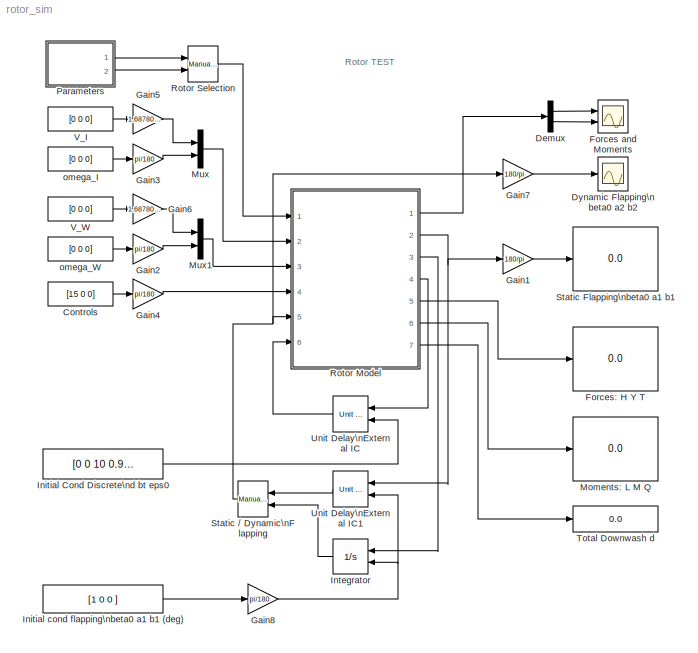
MODEL rotor_sim
KIND model
CONFIG PostLoadFcn = bus_RotorParameters;\nbus_FuselageParameters;\nbus_FinParameters;\nbus_GeometryParameters;\nbus_Environment;\n
BLOCK [Constant] Controls
  SID = 1
  Value = [15 0 0]
BLOCK [Demux] Demux
  DisplayOption = bar
  Outputs = [3 3]
  Ports = [1, 2]
  SID = 2
BLOCK [Scope] Dynamic Flapping\nbeta0 a2 b2
  DataFormat = StructureWithTime
  Floating = off
  LimitDataPoints = off
  NumInputPorts = 1
  Ports = [1]
  SID = 3
  SampleTime = 0
  YMax = 10
  YMin = -10
BLOCK [Scope] Forces and Moments
  DataFormat = StructureWithTime
  Floating = off
  LimitDataPoints = off
  NumInputPorts = 2
  Ports = [2]
  SID = 4
  SampleTime = 0
  SaveName = ScopeData1
  YMax = 2000~10000
  YMin = -6000~-10000
BLOCK [Display] Forces: H Y T
  Decimation = 1
  Lockdown = off
  Ports = [1]
  SID = 5
BLOCK [Gain] Gain1
  Gain = 180/pi
  OutDataTypeStr = Inherit: Inherit via internal rule
  ParamDataTypeStr = Inherit: Inherit via internal rule
  SID = 6
  SaturateOnIntegerOverflow = off
BLOCK [Gain] Gain2
  Gain = pi/180
  OutDataTypeStr = Inherit: Inherit via internal rule
  ParamDataTypeStr = Inherit: Inherit via internal rule
  SID = 7
  SaturateOnIntegerOverflow = off
BLOCK [Gain] Gain3
  Gain = pi/180
  OutDataTypeStr = Inherit: Inherit via internal rule
  ParamDataTypeStr = Inherit: Inherit via internal rule
  SID = 8
  SaturateOnIntegerOverflow = off
BLOCK [Gain] Gain4
  Gain = pi/180
  OutDataTypeStr = Inherit: Inherit via internal rule
  ParamDataTypeStr = Inherit: Inherit via internal rule
  SID = 9
  SaturateOnIntegerOverflow = off
BLOCK [Gain] Gain5
  Gain = 1.68780986
  OutDataTypeStr = Inherit: Inherit via internal rule
  ParamDataTypeStr = Inherit: Inherit via internal rule
  SID = 10
  SaturateOnIntegerOverflow = off
BLOCK [Gain] Gain6
  Gain = 1.68780986
  OutDataTypeStr = Inherit: Inherit via internal rule
  ParamDataTypeStr = Inherit: Inherit via internal rule
  SID = 11
  SaturateOnIntegerOverflow = off
BLOCK [Gain] Gain7
  Gain = 180/pi
  OutDataTypeStr = Inherit: Inherit via internal rule
  ParamDataTypeStr = Inherit: Inherit via internal rule
  SID = 12
  SaturateOnIntegerOverflow = off
BLOCK [Gain] Gain8
  Gain = pi/180
  OutDataTypeStr = Inherit: Inherit via internal rule
  ParamDataTypeStr = Inherit: Inherit via internal rule
  SID = 13
  SaturateOnIntegerOverflow = off
BLOCK [Constant] Initial Cond Discrete\nd  bt  eps0
  SID = 14
  Value = [0 0 10 0.97 0.0018]
BLOCK [Constant] Initial cond flapping\nbeta0 a1 b1 (deg)
  SID = 15
  Value = [1 0 0 ]
BLOCK [Integrator] Integrator
  InitialConditionSource = external
  Ports = [2, 1]
  SID = 16
BLOCK [Display] Moments: L M Q
  Decimation = 1
  Lockdown = off
  Ports = [1]
  SID = 17
BLOCK [Mux] Mux
  DisplayOption = bar
  Inputs = 2
  Ports = [2, 1]
  SID = 18
BLOCK [Mux] Mux1
  DisplayOption = bar
  Inputs = 2
  Ports = [2, 1]
  SID = 19
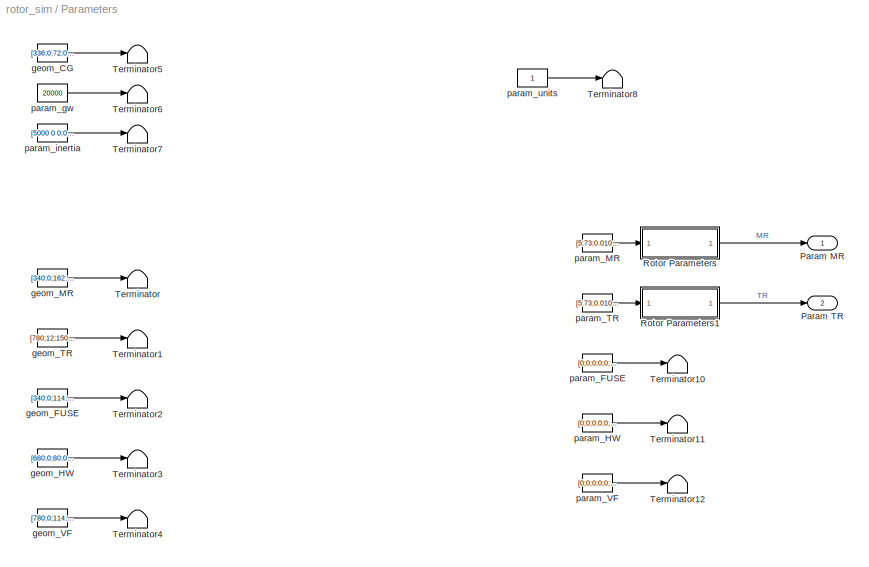
BLOCK [SubSystem] Parameters
  FunctionWithSeparateData = off
  MaskHideContents = off
  MinAlgLoopOccurrences = off
  Opaque = off
  OpenFcn = gui_HelicopterParameters( 'Block', [get_param(gcb, 'Parent') '/' get_param(gcb, 'Name')]);
  Ports = [0, 2]
  PropExecContextOutsideSubsystem = off
  RTWSystemCode = Auto
  RequestExecContextInheritance = off
  SID = 20
BLOCK [Outport] Parameters/Param MR
  IconDisplay = Port number
  SID = 71
BLOCK [Outport] Parameters/Param TR
  IconDisplay = Port number
  Port = 2
  SID = 72
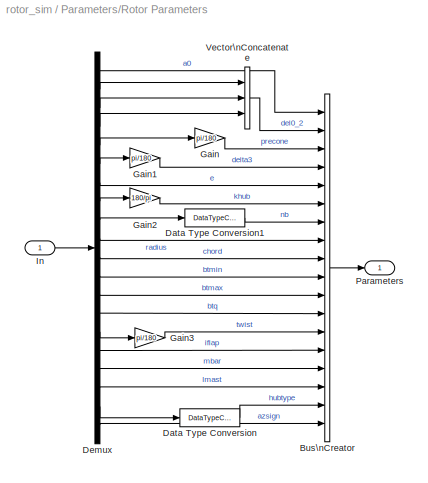
BLOCK [SubSystem] Parameters/Rotor Parameters
  FunctionWithSeparateData = off
  MaskHideContents = off
  MinAlgLoopOccurrences = off
  Opaque = off
  Ports = [1, 1]
  PropExecContextOutsideSubsystem = off
  RTWSystemCode = Auto
  RequestExecContextInheritance = off
  SID = 21
BLOCK [BusCreator] Parameters/Rotor Parameters/Bus\nCreator
  DisplayOption = bar
  Inputs = 18
  NonVirtualBus = on
  OutDataTypeStr = Bus: RotorParameters
  Ports = [18, 1]
  SID = 23
BLOCK [DataTypeConversion] Parameters/Rotor Parameters/Data Type Conversion
  OutDataTypeStr = int32
  RndMeth = Nearest
  SID = 24
  SaturateOnIntegerOverflow = off
BLOCK [DataTypeConversion] Parameters/Rotor Parameters/Data Type Conversion1
  OutDataTypeStr = uint32
  RndMeth = Nearest
  SID = 25
  SaturateOnIntegerOverflow = off
BLOCK [Demux] Parameters/Rotor Parameters/Demux
  DisplayOption = bar
  Outputs = 20
  Ports = [1, 20]
  SID = 26
BLOCK [Gain] Parameters/Rotor Parameters/Gain
  Gain = pi/180
  OutDataTypeStr = Inherit: Inherit via internal rule
  ParamDataTypeStr = Inherit: Inherit via internal rule
  SID = 27
  SaturateOnIntegerOverflow = off
BLOCK [Gain] Parameters/Rotor Parameters/Gain1
  Gain = pi/180
  OutDataTypeStr = Inherit: Inherit via internal rule
  ParamDataTypeStr = Inherit: Inherit via internal rule
  SID = 28
  SaturateOnIntegerOverflow = off
BLOCK [Gain] Parameters/Rotor Parameters/Gain2
  Gain = 180/pi
  OutDataTypeStr = Inherit: Inherit via internal rule
  ParamDataTypeStr = Inherit: Inherit via internal rule
  SID = 29
  SaturateOnIntegerOverflow = off
BLOCK [Gain] Parameters/Rotor Parameters/Gain3
  Gain = pi/180
  OutDataTypeStr = Inherit: Inherit via internal rule
  ParamDataTypeStr = Inherit: Inherit via internal rule
  SID = 30
  SaturateOnIntegerOverflow = off
BLOCK [Inport] Parameters/Rotor Parameters/In
  IconDisplay = Port number
  SID = 22
BLOCK [Outport] Parameters/Rotor Parameters/Parameters
  IconDisplay = Port number
  OutDataTypeStr = Bus: RotorParameters
  SID = 32
BLOCK [Concatenate] Parameters/Rotor Parameters/Vector\nConcatenate
  Mode = Vector
  NumInputs = 3
  Ports = [3, 1]
  SID = 31
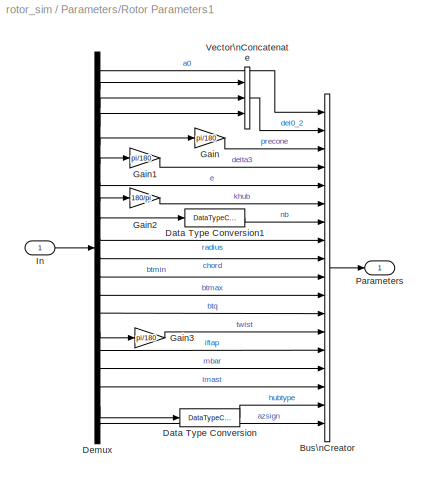
BLOCK [SubSystem] Parameters/Rotor Parameters1
  FunctionWithSeparateData = off
  MaskHideContents = off
  MinAlgLoopOccurrences = off
  Opaque = off
  Ports = [1, 1]
  PropExecContextOutsideSubsystem = off
  RTWSystemCode = Auto
  RequestExecContextInheritance = off
  SID = 33
BLOCK [BusCreator] Parameters/Rotor Parameters1/Bus\nCreator
  DisplayOption = bar
  Inputs = 18
  NonVirtualBus = on
  OutDataTypeStr = Bus: RotorParameters
  Ports = [18, 1]
  SID = 35
BLOCK [DataTypeConversion] Parameters/Rotor Parameters1/Data Type Conversion
  OutDataTypeStr = int32
  RndMeth = Nearest
  SID = 36
  SaturateOnIntegerOverflow = off
BLOCK [DataTypeConversion] Parameters/Rotor Parameters1/Data Type Conversion1
  OutDataTypeStr = uint32
  RndMeth = Nearest
  SID = 37
  SaturateOnIntegerOverflow = off
BLOCK [Demux] Parameters/Rotor Parameters1/Demux
  DisplayOption = bar
  Outputs = 20
  Ports = [1, 20]
  SID = 38
BLOCK [Gain] Parameters/Rotor Parameters1/Gain
  Gain = pi/180
  OutDataTypeStr = Inherit: Inherit via internal rule
  ParamDataTypeStr = Inherit: Inherit via internal rule
  SID = 39
  SaturateOnIntegerOverflow = off
BLOCK [Gain] Parameters/Rotor Parameters1/Gain1
  Gain = pi/180
  OutDataTypeStr = Inherit: Inherit via internal rule
  ParamDataTypeStr = Inherit: Inherit via internal rule
  SID = 40
  SaturateOnIntegerOverflow = off
BLOCK [Gain] Parameters/Rotor Parameters1/Gain2
  Gain = 180/pi
  OutDataTypeStr = Inherit: Inherit via internal rule
  ParamDataTypeStr = Inherit: Inherit via internal rule
  SID = 41
  SaturateOnIntegerOverflow = off
BLOCK [Gain] Parameters/Rotor Parameters1/Gain3
  Gain = pi/180
  OutDataTypeStr = Inherit: Inherit via internal rule
  ParamDataTypeStr = Inherit: Inherit via internal rule
  SID = 42
  SaturateOnIntegerOverflow = off
BLOCK [Inport] Parameters/Rotor Parameters1/In
  IconDisplay = Port number
  SID = 34
BLOCK [Outport] Parameters/Rotor Parameters1/Parameters
  IconDisplay = Port number
  OutDataTypeStr = Bus: RotorParameters
  SID = 44
BLOCK [Concatenate] Parameters/Rotor Parameters1/Vector\nConcatenate
  Mode = Vector
  NumInputs = 3
  Ports = [3, 1]
  SID = 43
BLOCK [Terminator] Parameters/Terminator
  SID = 45
BLOCK [Terminator] Parameters/Terminator1
  SID = 46
BLOCK [Terminator] Parameters/Terminator10
  SID = 47
BLOCK [Terminator] Parameters/Terminator11
  SID = 48
BLOCK [Terminator] Parameters/Terminator12
  SID = 49
BLOCK [Terminator] Parameters/Terminator2
  SID = 50
BLOCK [Terminator] Parameters/Terminator3
  SID = 51
BLOCK [Terminator] Parameters/Terminator4
  SID = 52
BLOCK [Terminator] Parameters/Terminator5
  SID = 53
BLOCK [Terminator] Parameters/Terminator6
  SID = 54
BLOCK [Terminator] Parameters/Terminator7
  SID = 55
BLOCK [Terminator] Parameters/Terminator8
  SID = 56
BLOCK [Constant] Parameters/geom_CG
  SID = 57
  Value = [336;0;72;0;0;0]
BLOCK [Constant] Parameters/geom_FUSE
  SID = 58
  Value = [340;0;114;0;0;0]
BLOCK [Constant] Parameters/geom_HW
  SID = 59
  Value = [680;0;80;0;0;0]
BLOCK [Constant] Parameters/geom_MR
  SID = 60
  Value = [340;0;162;0;0;0]
BLOCK [Constant] Parameters/geom_TR
  SID = 61
  Value = [780;12;150;90;0;0]
BLOCK [Constant] Parameters/geom_VF
  SID = 62
  Value = [780;0;114;-90;0;0]
BLOCK [Constant] Parameters/param_FUSE
  SID = 63
  Value = [0;0;0;0;0;0;0;0;0;0;0;0;0;0;0;0;0]
BLOCK [Constant] Parameters/param_HW
  SID = 64
  Value = [0;0;0;0;0;0;0;0;0;0;0;0;0;0]
BLOCK [Constant] Parameters/param_MR
  SID = 65
  Value = [5.73;0.0105;0;0.01325;0;0;0;0;2;22;2;0.97;0.97;1;-11;1403;0;0;1;-1]
BLOCK [Constant] Parameters/param_TR
  SID = 66
  Value = [5.73;0.0105;0;0.01325;0;-45;0;0;4;6.5;1.25;0.97;0.97;1;0;0;0.26;0;1;-1]
BLOCK [Constant] Parameters/param_VF
  SID = 67
  Value = [0;0;0;0;0;0;0;0;0;0;0;0;0;0]
BLOCK [Constant] Parameters/param_gw
  SID = 68
  Value = 20000
BLOCK [Constant] Parameters/param_inertia
  SID = 69
  Value = [5000 0 0;0 35000 0;0 0 35000]
BLOCK [Constant] Parameters/param_units
  SID = 70
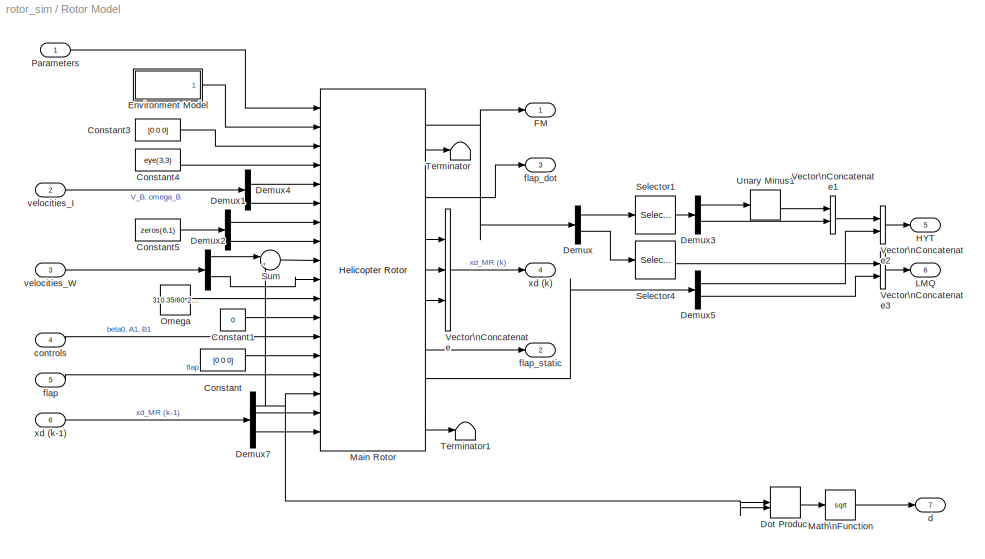
BLOCK [SubSystem] Rotor Model
  FunctionWithSeparateData = off
  MaskHideContents = off
  MinAlgLoopOccurrences = off
  Opaque = off
  Ports = [6, 7]
  PropExecContextOutsideSubsystem = off
  RTWSystemCode = Auto
  RequestExecContextInheritance = off
  SID = 73
BLOCK [Constant] Rotor Model/Constant
  SID = 80
  Value = [0 0 0]
BLOCK [Constant] Rotor Model/Constant1
  SID = 81
  Value = 0
BLOCK [Constant] Rotor Model/Constant3
  SID = 82
  Value = [0 0 0]
BLOCK [Constant] Rotor Model/Constant4
  SID = 83
  Value = eye(3,3)
BLOCK [Constant] Rotor Model/Constant5
  SID = 84
  Value = zeros(6,1)
BLOCK [Demux] Rotor Model/Demux
  DisplayOption = bar
  Outputs = 2
  Ports = [1, 2]
  SID = 85
BLOCK [Demux] Rotor Model/Demux1
  DisplayOption = bar
  Outputs = 2
  Ports = [1, 2]
  SID = 86
BLOCK [Demux] Rotor Model/Demux2
  DisplayOption = bar
  Outputs = 2
  Ports = [1, 2]
  SID = 87
BLOCK [Demux] Rotor Model/Demux3
  DisplayOption = bar
  Outputs = 2
  Ports = [1, 2]
  SID = 88
BLOCK [Demux] Rotor Model/Demux4
  DisplayOption = bar
  Outputs = 2
  Ports = [1, 2]
  SID = 89
BLOCK [Demux] Rotor Model/Demux5
  DisplayOption = bar
  Outputs = 2
  Ports = [1, 2]
  SID = 90
BLOCK [Demux] Rotor Model/Demux7
  DisplayOption = bar
  Outputs = [3 1 1]
  Ports = [1, 3]
  SID = 91
BLOCK [DotProduct] Rotor Model/Dot Product
  OutDataTypeStr = Inherit: Inherit via internal rule
  SID = 92
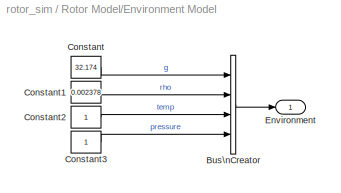
BLOCK [SubSystem] Rotor Model/Environment Model
  FunctionWithSeparateData = off
  MaskHideContents = off
  MinAlgLoopOccurrences = off
  Opaque = off
  Ports = [0, 1]
  PropExecContextOutsideSubsystem = off
  RTWSystemCode = Auto
  RequestExecContextInheritance = off
  SID = 93
BLOCK [BusCreator] Rotor Model/Environment Model/Bus\nCreator
  DisplayOption = bar
  NonVirtualBus = on
  OutDataTypeStr = Bus: Environment
  Ports = [4, 1]
  SID = 94
BLOCK [Constant] Rotor Model/Environment Model/Constant
  SID = 95
  Value = 32.174
BLOCK [Constant] Rotor Model/Environment Model/Constant1
  SID = 96
  Value = 0.002378
BLOCK [Constant] Rotor Model/Environment Model/Constant2
  SID = 97
BLOCK [Constant] Rotor Model/Environment Model/Constant3
  SID = 98
BLOCK [Outport] Rotor Model/Environment Model/Environment
  IconDisplay = Port number
  OutDataTypeStr = Bus: Environment
  SID = 99
BLOCK [Outport] Rotor Model/FM
  IconDisplay = Port number
  SID = 113
BLOCK [Outport] Rotor Model/HYT
  IconDisplay = Port number
  Port = 5
  SID = 117
BLOCK [Outport] Rotor Model/LMQ
  IconDisplay = Port number
  Port = 6
  SID = 118
BLOCK [Reference] Rotor Model/Main Rotor  REF=UAVdesign_net/Subsystem\nModels/Helicopter Rotor
  FunctionWithSeparateData = off
  GeneratePreprocessorConditionals = off
  Ports = [18, 9]
  RTWMemSecDataConstants = Inherit from model
  RTWMemSecDataInternal = Inherit from model
  RTWMemSecDataParameters = Inherit from model
  RTWMemSecFuncExecute = Inherit from model
  RTWMemSecFuncInitTerm = Inherit from model
  SID = 100
  ShowPortLabels = FromPortIcon
  SourceBlock = UAVdesign_net/Subsystem\nModels/Helicopter Rotor
  SourceType = HelicopterRotorModel
  SystemSampleTime = -1
BLOCK [Math] Rotor Model/Math\nFunction
  Operator = sqrt
  Ports = [1, 1]
  SID = 101
BLOCK [Constant] Rotor Model/Omega
  SID = 102
  Value = 310.35/60*2*pi
BLOCK [Inport] Rotor Model/Parameters
  IconDisplay = Port number
  OutDataTypeStr = Bus: RotorParameters
  SID = 74
BLOCK [Selector] Rotor Model/Selector1
  IndexOptions = Index vector (dialog)
  Indices = [1 2]
  InputPortWidth = 3
  OutputSizes = 1
  Ports = [1, 1]
  SID = 103
BLOCK [Selector] Rotor Model/Selector4
  IndexOptions = Index vector (dialog)
  Indices = [1 2]
  InputPortWidth = 3
  OutputSizes = 1
  Ports = [1, 1]
  SID = 104
BLOCK [Sum] Rotor Model/Sum
  IconShape = round
  InputSameDT = off
  Inputs = |++
  OutDataTypeStr = Inherit: Inherit via internal rule
  Ports = [2, 1]
  SID = 105
  SaturateOnIntegerOverflow = off
BLOCK [Terminator] Rotor Model/Terminator
  SID = 106
BLOCK [Terminator] Rotor Model/Terminator1
  SID = 107
BLOCK [UnaryMinus] Rotor Model/Unary Minus1
  SID = 108
BLOCK [Concatenate] Rotor Model/Vector\nConcatenate
  Mode = Vector
  NumInputs = 3
  Ports = [3, 1]
  SID = 109
BLOCK [Concatenate] Rotor Model/Vector\nConcatenate1
  Mode = Vector
  Ports = [2, 1]
  SID = 110
BLOCK [Concatenate] Rotor Model/Vector\nConcatenate2
  Mode = Vector
  Ports = [2, 1]
  SID = 111
BLOCK [Concatenate] Rotor Model/Vector\nConcatenate3
  Mode = Vector
  Ports = [2, 1]
  SID = 112
BLOCK [Inport] Rotor Model/controls
  IconDisplay = Port number
  Port = 4
  SID = 77
BLOCK [Outport] Rotor Model/d
  IconDisplay = Port number
  Port = 7
  SID = 119
BLOCK [Inport] Rotor Model/flap
  IconDisplay = Port number
  Port = 5
  SID = 78
BLOCK [Outport] Rotor Model/flap_dot
  IconDisplay = Port number
  Port = 3
  SID = 115
BLOCK [Outport] Rotor Model/flap_static
  IconDisplay = Port number
  Port = 2
  SID = 114
BLOCK [Inport] Rotor Model/velocities_I
  IconDisplay = Port number
  Port = 2
  SID = 75
BLOCK [Inport] Rotor Model/velocities_W
  IconDisplay = Port number
  Port = 3
  SID = 76
BLOCK [Outport] Rotor Model/xd (k)
  IconDisplay = Port number
  Port = 4
  SID = 116
BLOCK [Inport] Rotor Model/xd (k-1)
  IconDisplay = Port number
  Port = 6
  SID = 79
BLOCK [Reference] Rotor Selection  REF=simulink/Signal\nRouting/Manual Switch
  FunctionWithSeparateData = off
  GeneratePreprocessorConditionals = off
  Ports = [2, 1]
  RTWMemSecDataConstants = Inherit from model
  RTWMemSecDataInternal = Inherit from model
  RTWMemSecDataParameters = Inherit from model
  RTWMemSecFuncExecute = Inherit from model
  RTWMemSecFuncInitTerm = Inherit from model
  SID = 120
  ShowPortLabels = FromPortIcon
  SourceBlock = simulink/Signal\nRouting/Manual Switch
  SourceType = Manual Switch
  SystemSampleTime = -1
  action = 0
  sw = 1
  varsize = off
BLOCK [Reference] Static // Dynamic\nFlapping  REF=simulink/Signal\nRouting/Manual Switch
  FunctionWithSeparateData = off
  GeneratePreprocessorConditionals = off
  Ports = [2, 1]
  RTWMemSecDataConstants = Inherit from model
  RTWMemSecDataInternal = Inherit from model
  RTWMemSecDataParameters = Inherit from model
  RTWMemSecFuncExecute = Inherit from model
  RTWMemSecFuncInitTerm = Inherit from model
  SID = 121
  ShowPortLabels = FromPortIcon
  SourceBlock = simulink/Signal\nRouting/Manual Switch
  SourceType = Manual Switch
  SystemSampleTime = -1
  action = 0
  sw = 1
  varsize = off
BLOCK [Display] Static Flapping\nbeta0 a1 b1
  Decimation = 1
  Lockdown = off
  Ports = [1]
  SID = 122
BLOCK [Display] Total Downwash d
  Decimation = 1
  Lockdown = off
  Ports = [1]
  SID = 123
BLOCK [Reference] Unit Delay\nExternal IC  REF=simulink/Additional Math\n& Discrete/Additional\nDiscrete/Unit Delay\nExternal IC
  FunctionWithSeparateData = off
  GeneratePreprocessorConditionals = off
  Ports = [2, 1]
  RTWMemSecDataConstants = Inherit from model
  RTWMemSecDataInternal = Inherit from model
  RTWMemSecDataParameters = Inherit from model
  RTWMemSecFuncExecute = Inherit from model
  RTWMemSecFuncInitTerm = Inherit from model
  SID = 124
  ShowPortLabels = FromPortIcon
  SourceBlock = simulink/Additional Math\n& Discrete/Additional\nDiscrete/Unit Delay\nExternal IC
  SourceType = Unit Delay External Initial Condition
  SystemSampleTime = -1
  tsamp = 1/25
BLOCK [Reference] Unit Delay\nExternal IC1  REF=simulink/Additional Math\n& Discrete/Additional\nDiscrete/Unit Delay\nExternal IC
  FunctionWithSeparateData = off
  GeneratePreprocessorConditionals = off
  Ports = [2, 1]
  RTWMemSecDataConstants = Inherit from model
  RTWMemSecDataInternal = Inherit from model
  RTWMemSecDataParameters = Inherit from model
  RTWMemSecFuncExecute = Inherit from model
  RTWMemSecFuncInitTerm = Inherit from model
  SID = 125
  ShowPortLabels = FromPortIcon
  SourceBlock = simulink/Additional Math\n& Discrete/Additional\nDiscrete/Unit Delay\nExternal IC
  SourceType = Unit Delay External Initial Condition
  SystemSampleTime = -1
  tsamp = 1/25
BLOCK [Constant] V_I
  SID = 126
  Value = [0 0 0]
BLOCK [Constant] V_W
  SID = 127
  Value = [0 0 0]
BLOCK [Constant] omega_I
  SID = 128
  Value = [0 0 0]
BLOCK [Constant] omega_W
  SID = 129
  Value = [0 0 0]
ANNOTATION (root): Rotor TEST
LINE Controls:1 -> Gain4:1
LINE Demux:1 -> Forces and Moments:1
LINE Demux:2 -> Forces and Moments:2
LINE Gain1:1 -> Static Flapping\nbeta0 a1 b1:1
LINE Gain2:1 -> Mux1:2
LINE Gain3:1 -> Mux:2
LINE Gain4:1 -> Rotor Model:4
LINE Gain5:1 -> Mux:1
LINE Gain6:1 -> Mux1:1
LINE Gain7:1 -> Dynamic Flapping\nbeta0 a2 b2:1
NET Gain8:1 -> Integrator:2, Unit Delay\nExternal IC1:2
LINE Initial Cond Discrete\nd  bt  eps0:1 -> Unit Delay\nExternal IC:2
LINE Initial cond flapping\nbeta0 a1 b1 (deg):1 -> Gain8:1
LINE Integrator:1 -> Static // Dynamic\nFlapping:2
LINE Mux1:1 -> Rotor Model:3
LINE Mux:1 -> Rotor Model:2
LINE Parameters/Rotor Parameters/Bus\nCreator:1 -> Parameters/Rotor Parameters/Parameters:1
LINE Parameters/Rotor Parameters/Data Type Conversion1:1 -> Parameters/Rotor Parameters/Bus\nCreator:7
LINE Parameters/Rotor Parameters/Data Type Conversion:1 -> Parameters/Rotor Parameters/Bus\nCreator:17
LINE Parameters/Rotor Parameters/Demux:1 -> Parameters/Rotor Parameters/Bus\nCreator:1
LINE Parameters/Rotor Parameters/Demux:10 -> Parameters/Rotor Parameters/Bus\nCreator:8
LINE Parameters/Rotor Parameters/Demux:11 -> Parameters/Rotor Parameters/Bus\nCreator:9
LINE Parameters/Rotor Parameters/Demux:12 -> Parameters/Rotor Parameters/Bus\nCreator:10
LINE Parameters/Rotor Parameters/Demux:13 -> Parameters/Rotor Parameters/Bus\nCreator:11
LINE Parameters/Rotor Parameters/Demux:14 -> Parameters/Rotor Parameters/Bus\nCreator:12
LINE Parameters/Rotor Parameters/Demux:15 -> Parameters/Rotor Parameters/Gain3:1
LINE Parameters/Rotor Parameters/Demux:16 -> Parameters/Rotor Parameters/Bus\nCreator:14
LINE Parameters/Rotor Parameters/Demux:17 -> Parameters/Rotor Parameters/Bus\nCreator:15
LINE Parameters/Rotor Parameters/Demux:18 -> Parameters/Rotor Parameters/Bus\nCreator:16
LINE Parameters/Rotor Parameters/Demux:19 -> Parameters/Rotor Parameters/Data Type Conversion:1
LINE Parameters/Rotor Parameters/Demux:2 -> Parameters/Rotor Parameters/Vector\nConcatenate:1
LINE Parameters/Rotor Parameters/Demux:20 -> Parameters/Rotor Parameters/Bus\nCreator:18
LINE Parameters/Rotor Parameters/Demux:3 -> Parameters/Rotor Parameters/Vector\nConcatenate:2
LINE Parameters/Rotor Parameters/Demux:4 -> Parameters/Rotor Parameters/Vector\nConcatenate:3
LINE Parameters/Rotor Parameters/Demux:5 -> Parameters/Rotor Parameters/Gain:1
LINE Parameters/Rotor Parameters/Demux:6 -> Parameters/Rotor Parameters/Gain1:1
LINE Parameters/Rotor Parameters/Demux:7 -> Parameters/Rotor Parameters/Bus\nCreator:5
LINE Parameters/Rotor Parameters/Demux:8 -> Parameters/Rotor Parameters/Gain2:1
LINE Parameters/Rotor Parameters/Demux:9 -> Parameters/Rotor Parameters/Data Type Conversion1:1
LINE Parameters/Rotor Parameters/Gain1:1 -> Parameters/Rotor Parameters/Bus\nCreator:4
LINE Parameters/Rotor Parameters/Gain2:1 -> Parameters/Rotor Parameters/Bus\nCreator:6
LINE Parameters/Rotor Parameters/Gain3:1 -> Parameters/Rotor Parameters/Bus\nCreator:13
LINE Parameters/Rotor Parameters/Gain:1 -> Parameters/Rotor Parameters/Bus\nCreator:3
LINE Parameters/Rotor Parameters/In:1 -> Parameters/Rotor Parameters/Demux:1
LINE Parameters/Rotor Parameters/Vector\nConcatenate:1 -> Parameters/Rotor Parameters/Bus\nCreator:2
LINE Parameters/Rotor Parameters1/Bus\nCreator:1 -> Parameters/Rotor Parameters1/Parameters:1
LINE Parameters/Rotor Parameters1/Data Type Conversion1:1 -> Parameters/Rotor Parameters1/Bus\nCreator:7
LINE Parameters/Rotor Parameters1/Data Type Conversion:1 -> Parameters/Rotor Parameters1/Bus\nCreator:17
LINE Parameters/Rotor Parameters1/Demux:1 -> Parameters/Rotor Parameters1/Bus\nCreator:1
LINE Parameters/Rotor Parameters1/Demux:10 -> Parameters/Rotor Parameters1/Bus\nCreator:8
LINE Parameters/Rotor Parameters1/Demux:11 -> Parameters/Rotor Parameters1/Bus\nCreator:9
LINE Parameters/Rotor Parameters1/Demux:12 -> Parameters/Rotor Parameters1/Bus\nCreator:10
LINE Parameters/Rotor Parameters1/Demux:13 -> Parameters/Rotor Parameters1/Bus\nCreator:11
LINE Parameters/Rotor Parameters1/Demux:14 -> Parameters/Rotor Parameters1/Bus\nCreator:12
LINE Parameters/Rotor Parameters1/Demux:15 -> Parameters/Rotor Parameters1/Gain3:1
LINE Parameters/Rotor Parameters1/Demux:16 -> Parameters/Rotor Parameters1/Bus\nCreator:14
LINE Parameters/Rotor Parameters1/Demux:17 -> Parameters/Rotor Parameters1/Bus\nCreator:15
LINE Parameters/Rotor Parameters1/Demux:18 -> Parameters/Rotor Parameters1/Bus\nCreator:16
LINE Parameters/Rotor Parameters1/Demux:19 -> Parameters/Rotor Parameters1/Data Type Conversion:1
LINE Parameters/Rotor Parameters1/Demux:2 -> Parameters/Rotor Parameters1/Vector\nConcatenate:1
LINE Parameters/Rotor Parameters1/Demux:20 -> Parameters/Rotor Parameters1/Bus\nCreator:18
LINE Parameters/Rotor Parameters1/Demux:3 -> Parameters/Rotor Parameters1/Vector\nConcatenate:2
LINE Parameters/Rotor Parameters1/Demux:4 -> Parameters/Rotor Parameters1/Vector\nConcatenate:3
LINE Parameters/Rotor Parameters1/Demux:5 -> Parameters/Rotor Parameters1/Gain:1
LINE Parameters/Rotor Parameters1/Demux:6 -> Parameters/Rotor Parameters1/Gain1:1
LINE Parameters/Rotor Parameters1/Demux:7 -> Parameters/Rotor Parameters1/Bus\nCreator:5
LINE Parameters/Rotor Parameters1/Demux:8 -> Parameters/Rotor Parameters1/Gain2:1
LINE Parameters/Rotor Parameters1/Demux:9 -> Parameters/Rotor Parameters1/Data Type Conversion1:1
LINE Parameters/Rotor Parameters1/Gain1:1 -> Parameters/Rotor Parameters1/Bus\nCreator:4
LINE Parameters/Rotor Parameters1/Gain2:1 -> Parameters/Rotor Parameters1/Bus\nCreator:6
LINE Parameters/Rotor Parameters1/Gain3:1 -> Parameters/Rotor Parameters1/Bus\nCreator:13
LINE Parameters/Rotor Parameters1/Gain:1 -> Parameters/Rotor Parameters1/Bus\nCreator:3
LINE Parameters/Rotor Parameters1/In:1 -> Parameters/Rotor Parameters1/Demux:1
LINE Parameters/Rotor Parameters1/Vector\nConcatenate:1 -> Parameters/Rotor Parameters1/Bus\nCreator:2
LINE Parameters/Rotor Parameters1:1 -> Parameters/Param TR:1
LINE Parameters/Rotor Parameters:1 -> Parameters/Param MR:1
LINE Parameters/geom_CG:1 -> Parameters/Terminator5:1
LINE Parameters/geom_FUSE:1 -> Parameters/Terminator2:1
LINE Parameters/geom_HW:1 -> Parameters/Terminator3:1
LINE Parameters/geom_MR:1 -> Parameters/Terminator:1
LINE Parameters/geom_TR:1 -> Parameters/Terminator1:1
LINE Parameters/geom_VF:1 -> Parameters/Terminator4:1
LINE Parameters/param_FUSE:1 -> Parameters/Terminator10:1
LINE Parameters/param_HW:1 -> Parameters/Terminator11:1
LINE Parameters/param_MR:1 -> Parameters/Rotor Parameters:1
LINE Parameters/param_TR:1 -> Parameters/Rotor Parameters1:1
LINE Parameters/param_VF:1 -> Parameters/Terminator12:1
LINE Parameters/param_gw:1 -> Parameters/Terminator6:1
LINE Parameters/param_inertia:1 -> Parameters/Terminator7:1
LINE Parameters/param_units:1 -> Parameters/Terminator8:1
LINE Parameters:1 -> Rotor Selection:1
LINE Parameters:2 -> Rotor Selection:2
LINE Rotor Model/Constant1:1 -> Rotor Model/Main Rotor:12
LINE Rotor Model/Constant3:1 -> Rotor Model/Main Rotor:3
LINE Rotor Model/Constant4:1 -> Rotor Model/Main Rotor:4
LINE Rotor Model/Constant5:1 -> Rotor Model/Demux1:1
LINE Rotor Model/Constant:1 -> Rotor Model/Main Rotor:14
LINE Rotor Model/Demux1:1 -> Rotor Model/Main Rotor:7
LINE Rotor Model/Demux1:2 -> Rotor Model/Main Rotor:8
LINE Rotor Model/Demux2:1 -> Rotor Model/Sum:1
LINE Rotor Model/Demux2:2 -> Rotor Model/Main Rotor:10
LINE Rotor Model/Demux3:1 -> Rotor Model/Unary Minus1:1
LINE Rotor Model/Demux3:2 -> Rotor Model/Vector\nConcatenate1:2
LINE Rotor Model/Demux4:1 -> Rotor Model/Main Rotor:5
LINE Rotor Model/Demux4:2 -> Rotor Model/Main Rotor:6
LINE Rotor Model/Demux5:1 -> Rotor Model/Vector\nConcatenate2:2
LINE Rotor Model/Demux5:2 -> Rotor Model/Vector\nConcatenate3:2
NET Rotor Model/Demux7:1 -> Rotor Model/Dot Product:1, Rotor Model/Dot Product:2, Rotor Model/Main Rotor:16, Rotor Model/Sum:2
LINE Rotor Model/Demux7:2 -> Rotor Model/Main Rotor:17
LINE Rotor Model/Demux7:3 -> Rotor Model/Main Rotor:18
LINE Rotor Model/Demux:1 -> Rotor Model/Selector1:1
LINE Rotor Model/Demux:2 -> Rotor Model/Selector4:1
LINE Rotor Model/Dot Product:1 -> Rotor Model/Math\nFunction:1
LINE Rotor Model/Environment Model/Bus\nCreator:1 -> Rotor Model/Environment Model/Environment:1
LINE Rotor Model/Environment Model/Constant1:1 -> Rotor Model/Environment Model/Bus\nCreator:2
LINE Rotor Model/Environment Model/Constant2:1 -> Rotor Model/Environment Model/Bus\nCreator:3
LINE Rotor Model/Environment Model/Constant3:1 -> Rotor Model/Environment Model/Bus\nCreator:4
LINE Rotor Model/Environment Model/Constant:1 -> Rotor Model/Environment Model/Bus\nCreator:1
LINE Rotor Model/Environment Model:1 -> Rotor Model/Main Rotor:2
NET Rotor Model/Main Rotor:1 -> Rotor Model/Demux:1, Rotor Model/FM:1
LINE Rotor Model/Main Rotor:2 -> Rotor Model/Terminator:1
LINE Rotor Model/Main Rotor:3 -> Rotor Model/flap_dot:1
LINE Rotor Model/Main Rotor:4 -> Rotor Model/Vector\nConcatenate:1
LINE Rotor Model/Main Rotor:5 -> Rotor Model/Vector\nConcatenate:2
LINE Rotor Model/Main Rotor:6 -> Rotor Model/Vector\nConcatenate:3
LINE Rotor Model/Main Rotor:7 -> Rotor Model/flap_static:1
LINE Rotor Model/Main Rotor:8 -> Rotor Model/Demux5:1
LINE Rotor Model/Main Rotor:9 -> Rotor Model/Terminator1:1
LINE Rotor Model/Math\nFunction:1 -> Rotor Model/d:1
LINE Rotor Model/Omega:1 -> Rotor Model/Main Rotor:11
LINE Rotor Model/Parameters:1 -> Rotor Model/Main Rotor:1
LINE Rotor Model/Selector1:1 -> Rotor Model/Demux3:1
LINE Rotor Model/Selector4:1 -> Rotor Model/Vector\nConcatenate3:1
LINE Rotor Model/Sum:1 -> Rotor Model/Main Rotor:9
LINE Rotor Model/Unary Minus1:1 -> Rotor Model/Vector\nConcatenate1:1
LINE Rotor Model/Vector\nConcatenate1:1 -> Rotor Model/Vector\nConcatenate2:1
LINE Rotor Model/Vector\nConcatenate2:1 -> Rotor Model/HYT:1
LINE Rotor Model/Vector\nConcatenate3:1 -> Rotor Model/LMQ:1
LINE Rotor Model/Vector\nConcatenate:1 -> Rotor Model/xd (k):1
LINE Rotor Model/controls:1 -> Rotor Model/Main Rotor:13
LINE Rotor Model/flap:1 -> Rotor Model/Main Rotor:15
LINE Rotor Model/velocities_I:1 -> Rotor Model/Demux4:1
LINE Rotor Model/velocities_W:1 -> Rotor Model/Demux2:1
LINE Rotor Model/xd (k-1):1 -> Rotor Model/Demux7:1
LINE Rotor Model:1 -> Demux:1
NET Rotor Model:2 -> Gain1:1, Unit Delay\nExternal IC1:1
LINE Rotor Model:3 -> Integrator:1
LINE Rotor Model:4 -> Unit Delay\nExternal IC:1
LINE Rotor Model:5 -> Forces: H Y T:1
LINE Rotor Model:6 -> Moments: L M Q:1
LINE Rotor Model:7 -> Total Downwash d:1
LINE Rotor Selection:1 -> Rotor Model:1
NET Static // Dynamic\nFlapping:1 -> Gain7:1, Rotor Model:5
LINE Unit Delay\nExternal IC1:1 -> Static // Dynamic\nFlapping:1
LINE Unit Delay\nExternal IC:1 -> Rotor Model:6
LINE V_I:1 -> Gain5:1
LINE V_W:1 -> Gain6:1
LINE omega_I:1 -> Gain3:1
LINE omega_W:1 -> Gain2:1
note: NET lines group one-source signal fan-out (src -> all destinations, sorted); 1:1 wires keep LINE
